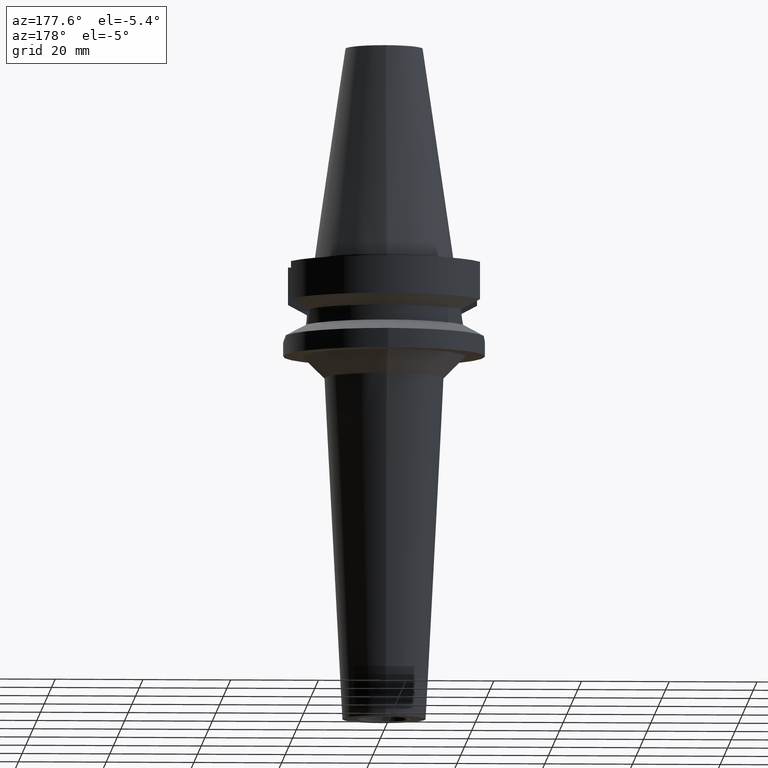
[diagram: clean part render]
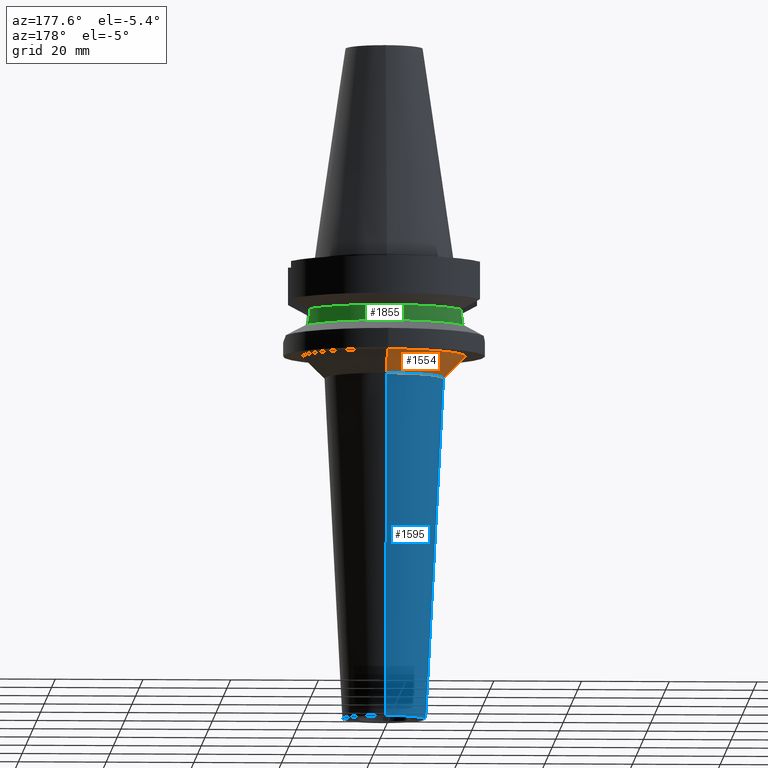
[diagram: same view with three faces highlighted in distinct colors, each labeled with its STEP entity id]
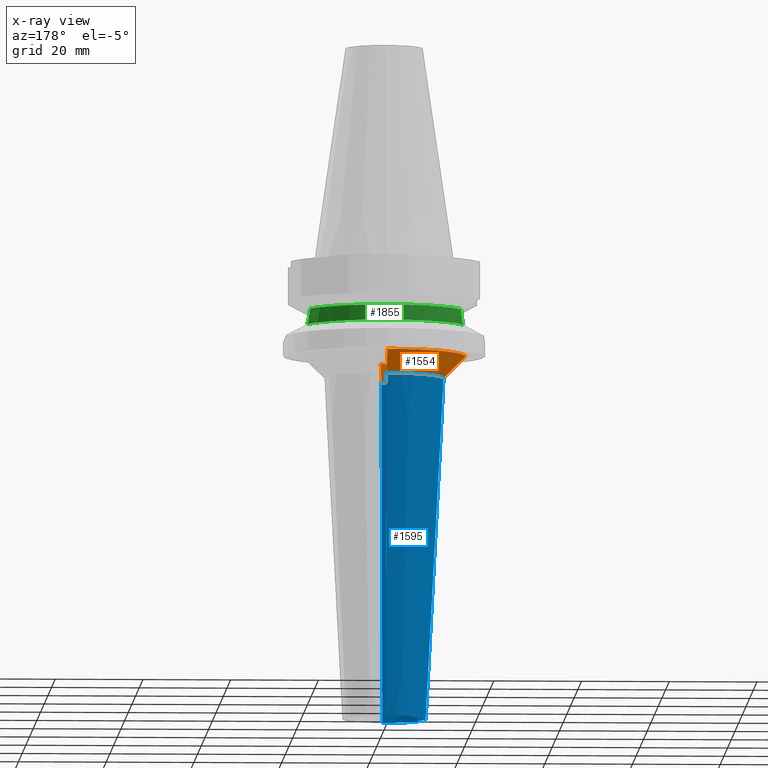
[diagram: x-ray of the same camera — body ghosted, the three highlighted faces saturated]
A machine part, auxiliary view with three faces highlighted in distinct colors.
The next image is the same camera in x-ray (body ghosted, the three faces saturated) — at least one of them is partly hidden behind the body in this view.
Their STEP definitions:

[orange] entity #1554 — the highlighted conical surface has half-angle 45 deg.
#631=CARTESIAN_POINT('',(0.E0,0.E0,-2.2E1));
#632=DIRECTION('',(0.E0,0.E0,-1.E0));
#633=DIRECTION('',(0.E0,-1.E0,0.E0));
#634=AXIS2_PLACEMENT_3D('',#631,#632,#633);
#647=DIRECTION('',(0.E0,7.071067811866E-1,-7.071067811865E-1));
#648=VECTOR('',#647,7.071067811866E0);
#649=CARTESIAN_POINT('',(0.E0,-1.858780678408E1,-2.2E1));
#650=LINE('',#649,#648);
#654=CARTESIAN_POINT('',(0.E0,0.E0,-2.7E1));
#655=DIRECTION('',(0.E0,0.E0,-1.E0));
#656=DIRECTION('',(0.E0,-1.E0,0.E0));
#657=AXIS2_PLACEMENT_3D('',#654,#655,#656);
#662=DIRECTION('',(0.E0,-7.071067811866E-1,-7.071067811865E-1));
#663=VECTOR('',#662,7.071067811866E0);
#664=CARTESIAN_POINT('',(0.E0,1.858780678408E1,-2.2E1));
#665=LINE('',#664,#663);
#1023=CARTESIAN_POINT('',(0.E0,1.358780678408E1,-2.7E1));
#1024=VERTEX_POINT('',#1023);
#1025=CARTESIAN_POINT('',(0.E0,-1.358780678408E1,-2.7E1));
#1026=VERTEX_POINT('',#1025);
#1027=CARTESIAN_POINT('',(0.E0,1.858780678408E1,-2.2E1));
#1028=VERTEX_POINT('',#1027);
#1029=CARTESIAN_POINT('',(0.E0,-1.858780678408E1,-2.2E1));
#1030=VERTEX_POINT('',#1029);
#1540=CARTESIAN_POINT('',(0.E0,0.E0,-2.45E1));
#1541=DIRECTION('',(0.E0,0.E0,1.E0));
#1542=DIRECTION('',(0.E0,1.E0,0.E0));
#1543=AXIS2_PLACEMENT_3D('',#1540,#1541,#1542);
#1544=CONICAL_SURFACE('',#1543,1.608780678408E1,4.5E1);
#1546=ORIENTED_EDGE('',*,*,#1545,.F.);
#1547=ORIENTED_EDGE('',*,*,#1533,.F.);
#1549=ORIENTED_EDGE('',*,*,#1548,.T.);
#1551=ORIENTED_EDGE('',*,*,#1550,.T.);
#1552=EDGE_LOOP('',(#1546,#1547,#1549,#1551));
#1553=FACE_OUTER_BOUND('',#1552,.F.);
#635=CIRCLE('',#634,1.858780678408E1);
#658=CIRCLE('',#657,1.358780678408E1);
#1533=EDGE_CURVE('',#1030,#1028,#635,.T.);
#1545=EDGE_CURVE('',#1028,#1024,#665,.T.);
#1548=EDGE_CURVE('',#1030,#1026,#650,.T.);
#1550=EDGE_CURVE('',#1026,#1024,#658,.T.);
#1554=ADVANCED_FACE('',(#1553),#1544,.T.);

[blue] entity #1595 — the highlighted conical surface has half-angle 3 deg.
#654=CARTESIAN_POINT('',(0.E0,0.E0,-2.7E1));
#655=DIRECTION('',(0.E0,0.E0,-1.E0));
#656=DIRECTION('',(0.E0,-1.E0,0.E0));
#657=AXIS2_PLACEMENT_3D('',#654,#655,#656);
#669=DIRECTION('',(0.E0,-5.233595624296E-2,-9.986295347546E-1));
#670=VECTOR('',#669,7.810704298784E1);
#671=CARTESIAN_POINT('',(0.E0,1.358780678408E1,-2.7E1));
#672=LINE('',#671,#670);
#684=DIRECTION('',(0.E0,5.233595624296E-2,-9.986295347546E-1));
#685=VECTOR('',#684,7.810704298784E1);
#686=CARTESIAN_POINT('',(0.E0,-1.358780678408E1,-2.7E1));
#687=LINE('',#686,#685);
#699=CARTESIAN_POINT('',(0.E0,0.E0,-1.05E2));
#700=DIRECTION('',(0.E0,0.E0,1.E0));
#701=DIRECTION('',(0.E0,1.E0,0.E0));
#702=AXIS2_PLACEMENT_3D('',#699,#700,#701);
#1019=CARTESIAN_POINT('',(0.E0,-9.500000000001E0,-1.05E2));
#1020=CARTESIAN_POINT('',(0.E0,9.500000000001E0,-1.05E2));
#1021=VERTEX_POINT('',#1019);
#1022=VERTEX_POINT('',#1020);
#1023=CARTESIAN_POINT('',(0.E0,1.358780678408E1,-2.7E1));
#1024=VERTEX_POINT('',#1023);
#1025=CARTESIAN_POINT('',(0.E0,-1.358780678408E1,-2.7E1));
#1026=VERTEX_POINT('',#1025);
#1583=CARTESIAN_POINT('',(0.E0,0.E0,-6.6E1));
#1584=DIRECTION('',(0.E0,0.E0,1.E0));
#1585=DIRECTION('',(0.E0,1.E0,0.E0));
#1586=AXIS2_PLACEMENT_3D('',#1583,#1584,#1585);
#1587=CONICAL_SURFACE('',#1586,1.154390339204E1,3.E0);
#1588=ORIENTED_EDGE('',*,*,#1573,.F.);
#1589=ORIENTED_EDGE('',*,*,#1550,.F.);
#1590=ORIENTED_EDGE('',*,*,#1577,.T.);
#1592=ORIENTED_EDGE('',*,*,#1591,.F.);
#1593=EDGE_LOOP('',(#1588,#1589,#1590,#1592));
#1594=FACE_OUTER_BOUND('',#1593,.F.);
#658=CIRCLE('',#657,1.358780678408E1);
#703=CIRCLE('',#702,9.500000000001E0);
#1550=EDGE_CURVE('',#1026,#1024,#658,.T.);
#1573=EDGE_CURVE('',#1024,#1022,#672,.T.);
#1577=EDGE_CURVE('',#1026,#1021,#687,.T.);
#1591=EDGE_CURVE('',#1022,#1021,#703,.T.);
#1595=ADVANCED_FACE('',(#1594),#1587,.T.);

[green] entity #1855 — the highlighted cylindrical surface (partial cylindrical patch) has radius 19 mm, axis along (0, 0, -1).
#350=CARTESIAN_POINT('',(0.E0,1.093341284897E-14,-1.187660944647E1));
#351=DIRECTION('',(0.E0,0.E0,-1.E0));
#352=DIRECTION('',(-9.071218755694E-1,4.208680349747E-1,0.E0));
#353=AXIS2_PLACEMENT_3D('',#350,#351,#352);
#358=CARTESIAN_POINT('',(0.E0,1.093341284897E-14,-1.187660944647E1));
#359=DIRECTION('',(0.E0,0.E0,-1.E0));
#360=DIRECTION('',(0.E0,1.E0,0.E0));
#361=AXIS2_PLACEMENT_3D('',#358,#359,#360);
#366=CARTESIAN_POINT('',(1.723531622904E1,7.996491146277E0,-1.187660607781E1));
#543=CARTESIAN_POINT('',(-1.775736593456E1,6.758398853744E0,-1.532339055353E1));
#579=CARTESIAN_POINT('',(0.E0,1.022848384030E-14,-1.532339055353E1));
#580=DIRECTION('',(0.E0,0.E0,1.E0));
#581=DIRECTION('',(9.345982070819E-1,3.557052028286E-1,0.E0));
#582=AXIS2_PLACEMENT_3D('',#579,#580,#581);
#587=CARTESIAN_POINT('',(0.E0,1.022848384030E-14,-1.532339055353E1));
#588=DIRECTION('',(0.E0,0.E0,1.E0));
#589=DIRECTION('',(0.E0,1.E0,0.E0));
#590=AXIS2_PLACEMENT_3D('',#587,#588,#589);
#951=CARTESIAN_POINT('',(-1.723531135311E1,7.996501749182E0,-1.187660739352E1));
#952=CARTESIAN_POINT('',(-1.725678362119E1,7.950221294319E0,-1.227600307428E1));
#953=CARTESIAN_POINT('',(-1.732661594053E1,7.799204436111E0,-1.306428782965E1));
#954=CARTESIAN_POINT('',(-1.750832761467E1,7.386181518900E0,-1.423048052165E1));
#955=CARTESIAN_POINT('',(-1.766917531537E1,6.990115437918E0,-1.496530840246E1));
#956=CARTESIAN_POINT('',(-1.775736593456E1,6.758398853744E0,-1.532339055353E1));
#961=CARTESIAN_POINT('',(1.775736593456E1,6.758398853744E0,-1.532339055353E1));
#962=CARTESIAN_POINT('',(1.766906836174E1,6.990396453417E0,-1.496487413646E1));
#963=CARTESIAN_POINT('',(1.750811847341E1,7.386671879778E0,-1.422936406742E1));
#964=CARTESIAN_POINT('',(1.732657549381E1,7.799288209426E0,-1.306384797530E1));
#965=CARTESIAN_POINT('',(1.725677825910E1,7.950232758024E0,-1.227581304930E1));
#966=CARTESIAN_POINT('',(1.723531622904E1,7.996491146277E0,-1.187660607781E1));
#1053=VERTEX_POINT('',#366);
#1054=VERTEX_POINT('',#961);
#1059=VERTEX_POINT('',#543);
#1061=CARTESIAN_POINT('',(0.E0,1.9E1,-1.532339055353E1));
#1062=VERTEX_POINT('',#1061);
#1063=VERTEX_POINT('',#951);
#1076=CARTESIAN_POINT('',(0.E0,1.9E1,-1.187660944647E1));
#1077=VERTEX_POINT('',#1076);
#1842=CARTESIAN_POINT('',(0.E0,1.911306259429E-14,5.607E1));
#1843=DIRECTION('',(0.E0,0.E0,-1.E0));
#1844=DIRECTION('',(0.E0,-1.E0,0.E0));
#1845=AXIS2_PLACEMENT_3D('',#1842,#1843,#1844);
#1846=CYLINDRICAL_SURFACE('',#1845,1.9E1);
#1847=ORIENTED_EDGE('',*,*,#1402,.T.);
#1848=ORIENTED_EDGE('',*,*,#1504,.F.);
#1849=ORIENTED_EDGE('',*,*,#1502,.F.);
#1850=ORIENTED_EDGE('',*,*,#1466,.T.);
#1851=ORIENTED_EDGE('',*,*,#1350,.F.);
#1852=ORIENTED_EDGE('',*,*,#1348,.F.);
#1853=EDGE_LOOP('',(#1847,#1848,#1849,#1850,#1851,#1852));
#1854=FACE_OUTER_BOUND('',#1853,.F.);
#354=CIRCLE('',#353,1.9E1);
#362=CIRCLE('',#361,1.9E1);
#583=CIRCLE('',#582,1.9E1);
#591=CIRCLE('',#590,1.9E1);
#957=B_SPLINE_CURVE_WITH_KNOTS('',3,(#951,#952,#953,#954,#955,#956),
.UNSPECIFIED.,.F.,.F.,(4,1,1,4),(0.E0,3.333333333333E-1,6.666666666667E-1,1.E0),
.UNSPECIFIED.);
#967=B_SPLINE_CURVE_WITH_KNOTS('',3,(#961,#962,#963,#964,#965,#966),
.UNSPECIFIED.,.F.,.F.,(4,1,1,4),(0.E0,3.333333333333E-1,6.666666666667E-1,1.E0),
.UNSPECIFIED.);
#1348=EDGE_CURVE('',#1063,#1077,#354,.T.);
#1350=EDGE_CURVE('',#1077,#1053,#362,.T.);
#1402=EDGE_CURVE('',#1063,#1059,#957,.T.);
#1466=EDGE_CURVE('',#1054,#1053,#967,.T.);
#1502=EDGE_CURVE('',#1054,#1062,#583,.T.);
#1504=EDGE_CURVE('',#1062,#1059,#591,.T.);
#1855=ADVANCED_FACE('',(#1854),#1846,.T.);